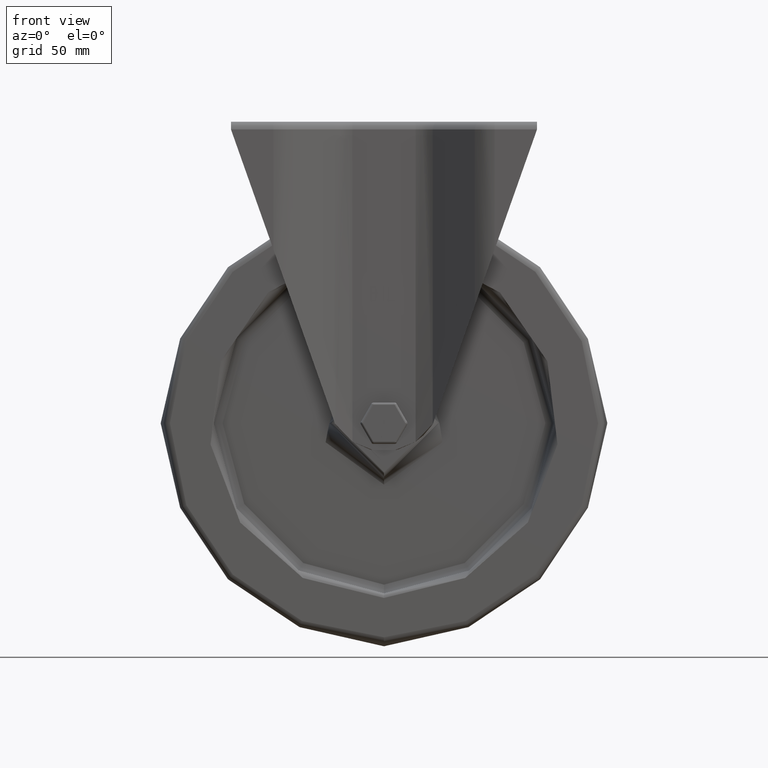
[diagram: clean part render]
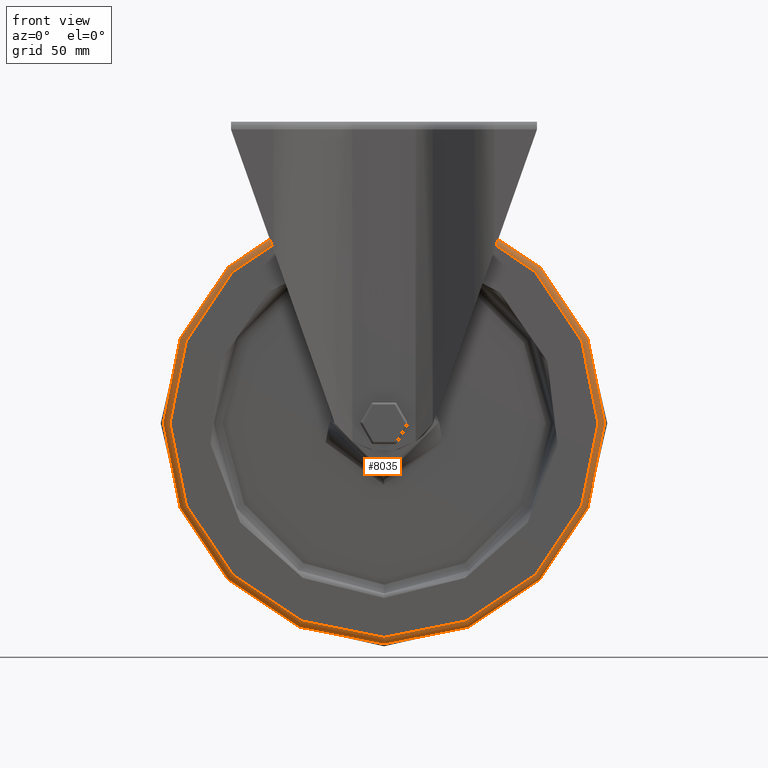
[diagram: same view with one face highlighted and labeled with its STEP entity id]
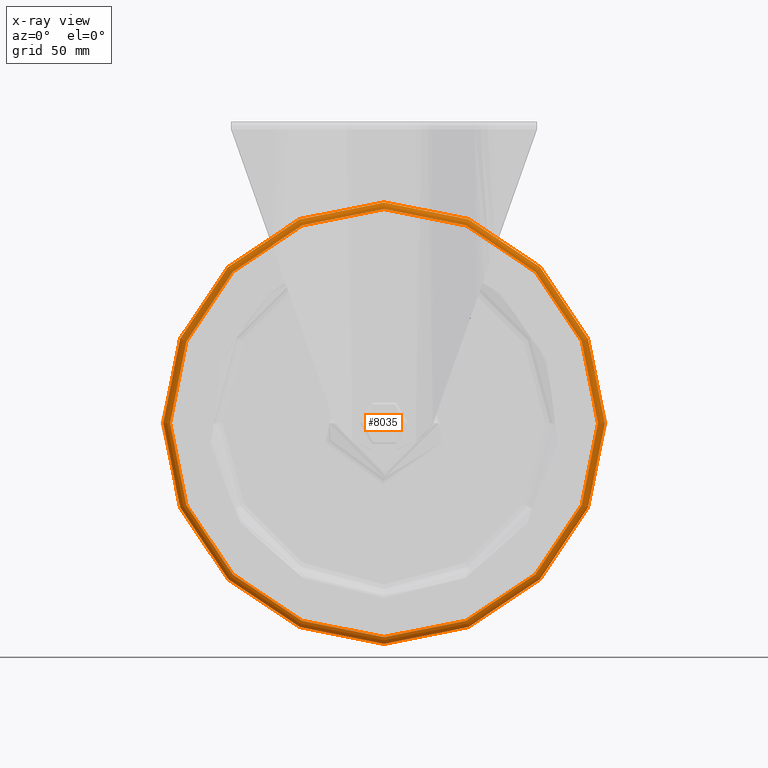
[diagram: x-ray of the same camera — body ghosted, the highlighted face saturated]
A machine part, front view. The second image highlights one B-rep face of the part: STEP entity #8035.
The next image is the same camera in x-ray: the body ghosted, the highlighted face saturated — about 0% of this face is hidden behind the body in this view.
In plain terms, the highlighted toroidal blend (fillet) surface has major radius 95.8344 mm and minor (blend) radius 3 mm.
Its self-contained STEP definition (entity closure, byte-faithful):
#518=TOROIDAL_SURFACE('',#8788,95.8343644102025,2.99999999999984);
#900=FACE_OUTER_BOUND('',#1396,.T.);
#1396=EDGE_LOOP('',(#6094,#6095,#6096,#6097));
#3126=CIRCLE('',#8787,98.8159353890198);
#3127=CIRCLE('',#8789,2.99999999999984);
#3128=CIRCLE('',#8790,95.8343644102025);
#3607=VERTEX_POINT('',#12837);
#3608=VERTEX_POINT('',#12841);
#4503=EDGE_CURVE('',#3607,#3607,#3126,.T.);
#4504=EDGE_CURVE('',#3607,#3608,#3127,.T.);
#4505=EDGE_CURVE('',#3608,#3608,#3128,.T.);
#6094=ORIENTED_EDGE('',*,*,#4503,.F.);
#6095=ORIENTED_EDGE('',*,*,#4504,.T.);
#6096=ORIENTED_EDGE('',*,*,#4505,.T.);
#6097=ORIENTED_EDGE('',*,*,#4504,.F.);
#8035=ADVANCED_FACE('',(#900),#518,.T.);
#8787=AXIS2_PLACEMENT_3D('',#12839,#10159,#10160);
#8788=AXIS2_PLACEMENT_3D('',#12840,#10161,#10162);
#8789=AXIS2_PLACEMENT_3D('',#12842,#10163,#10164);
#8790=AXIS2_PLACEMENT_3D('',#12843,#10165,#10166);
#10159=DIRECTION('center_axis',(0.,1.,0.));
#10160=DIRECTION('ref_axis',(0.,0.,1.));
#10161=DIRECTION('center_axis',(0.,1.,0.));
#10162=DIRECTION('ref_axis',(0.,0.,1.));
#10163=DIRECTION('center_axis',(-1.,0.,1.22464679914735E-16));
#10164=DIRECTION('ref_axis',(-1.22464679914735E-16,0.,-1.));
#10165=DIRECTION('center_axis',(0.,1.,0.));
#10166=DIRECTION('ref_axis',(0.,0.,1.));
#12837=CARTESIAN_POINT('',(1.21014618978915E-14,-21.3320158102768,-98.8159353890198));
#12839=CARTESIAN_POINT('Origin',(0.,-21.3320158102768,0.));
#12840=CARTESIAN_POINT('Origin',(0.,-21.0000000000001,0.));
#12841=CARTESIAN_POINT('',(1.17363247623275E-14,-24.,-95.8343644102025));
#12842=CARTESIAN_POINT('Origin',(-1.17363247623276E-14,-21.0000000000001,
-95.8343644102025));
#12843=CARTESIAN_POINT('Origin',(0.,-24.,0.));